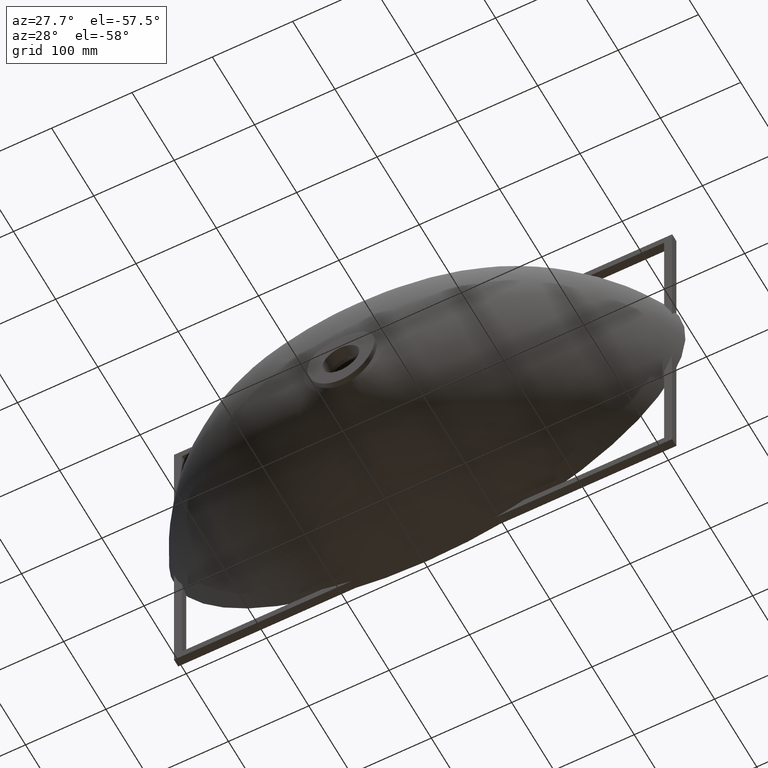
[diagram: clean part render]
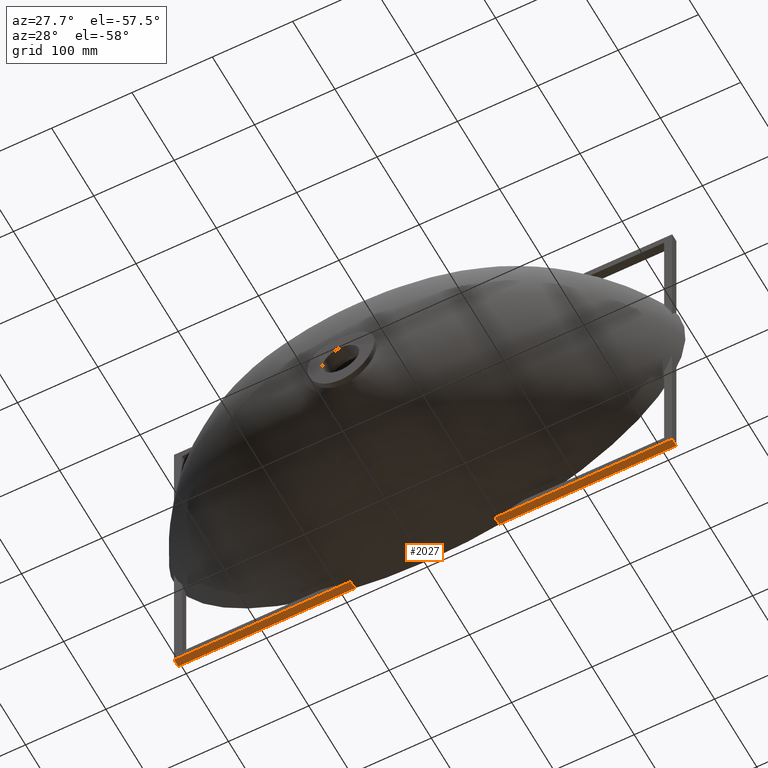
[diagram: same view with one face highlighted and labeled with its STEP entity id]
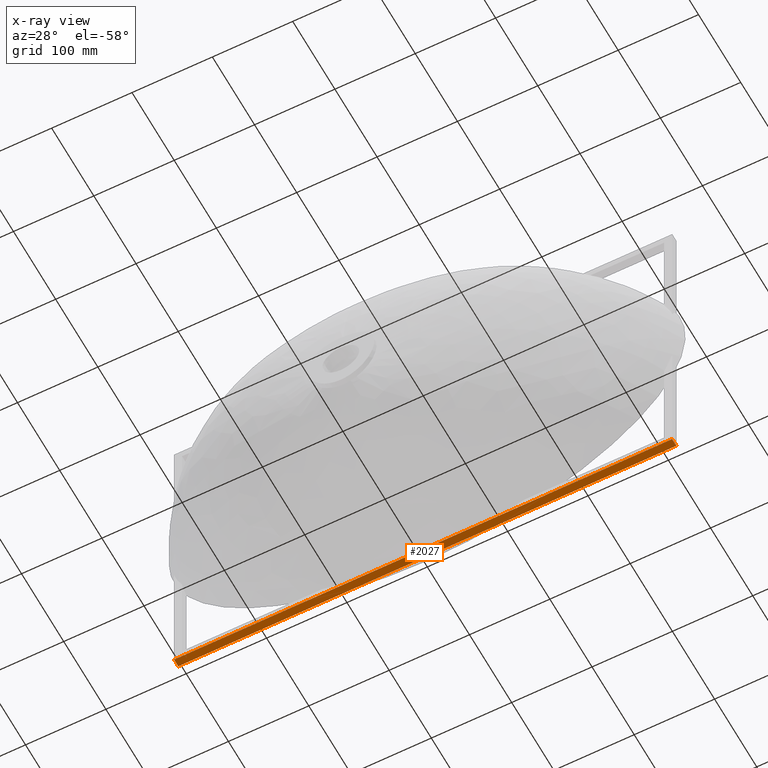
[diagram: x-ray of the same camera — body ghosted, the highlighted face saturated]
A machine part, auxiliary view. The second image highlights one B-rep face of the part: STEP entity #2027.
The next image is the same camera in x-ray: the body ghosted, the highlighted face saturated — about 0% of this face is hidden behind the body in this view.
In plain terms, the highlighted planar face has unit normal (-0, 0, -1).
Its self-contained STEP definition (entity closure, byte-faithful):
#147 = ORIENTED_EDGE ( 'NONE', *, *, #4228, .F. ) ;
#203 = CARTESIAN_POINT ( 'NONE',  ( -309.9999999999999400, 0.0000000000000000000, -209.9999999999999700 ) ) ;
#205 = CARTESIAN_POINT ( 'NONE',  ( 310.0000000000000600, -10.00000000000000000, -210.0000000000000000 ) ) ;
#275 = VECTOR ( 'NONE', #2187, 1000.000000000000000 ) ;
#372 = VERTEX_POINT ( 'NONE', #2166 ) ;
#538 = EDGE_CURVE ( 'NONE', #372, #1059, #3323, .T. ) ;
#636 = CARTESIAN_POINT ( 'NONE',  ( 310.0000000000000600, 0.0000000000000000000, -210.0000000000000000 ) ) ;
#783 = LINE ( 'NONE', #919, #1360 ) ;
#919 = CARTESIAN_POINT ( 'NONE',  ( -309.9999999999999400, -10.00000000000000000, -209.9999999999999700 ) ) ;
#920 = DIRECTION ( 'NONE',  ( -1.000000000000000000, 0.0000000000000000000, 4.476705744456277300E-017 ) ) ;
#996 = LINE ( 'NONE', #3366, #3087 ) ;
#1059 = VERTEX_POINT ( 'NONE', #203 ) ;
#1179 = ORIENTED_EDGE ( 'NONE', *, *, #2740, .F. ) ;
#1360 = VECTOR ( 'NONE', #3363, 1000.000000000000000 ) ;
#1461 = ORIENTED_EDGE ( 'NONE', *, *, #3640, .T. ) ;
#1498 = VERTEX_POINT ( 'NONE', #636 ) ;
#1729 = DIRECTION ( 'NONE',  ( 0.0000000000000000000, 1.000000000000000000, 0.0000000000000000000 ) ) ;
#1865 = DIRECTION ( 'NONE',  ( -4.476705744456277300E-017, 0.0000000000000000000, -1.000000000000000000 ) ) ;
#2027 = ADVANCED_FACE ( 'NONE', ( #3261 ), #3447, .T. ) ;
#2092 = VECTOR ( 'NONE', #1729, 1000.000000000000000 ) ;
#2166 = CARTESIAN_POINT ( 'NONE',  ( -309.9999999999999400, -10.00000000000000000, -209.9999999999999700 ) ) ;
#2187 = DIRECTION ( 'NONE',  ( 0.0000000000000000000, 1.000000000000000000, 0.0000000000000000000 ) ) ;
#2504 = CARTESIAN_POINT ( 'NONE',  ( 310.0000000000000600, -10.00000000000000000, -210.0000000000000000 ) ) ;
#2643 = CARTESIAN_POINT ( 'NONE',  ( -309.9999999999999400, -10.00000000000000000, -209.9999999999999700 ) ) ;
#2740 = EDGE_CURVE ( 'NONE', #1498, #1059, #996, .T. ) ;
#2995 = DIRECTION ( 'NONE',  ( -1.000000000000000000, -0.0000000000000000000, 4.476705744456276700E-017 ) ) ;
#3087 = VECTOR ( 'NONE', #2995, 1000.000000000000000 ) ;
#3261 = FACE_OUTER_BOUND ( 'NONE', #4330, .T. ) ;
#3323 = LINE ( 'NONE', #2643, #275 ) ;
#3363 = DIRECTION ( 'NONE',  ( -1.000000000000000000, -0.0000000000000000000, 4.476705744456276700E-017 ) ) ;
#3366 = CARTESIAN_POINT ( 'NONE',  ( -309.9999999999999400, 0.0000000000000000000, -209.9999999999999700 ) ) ;
#3447 = PLANE ( 'NONE',  #4034 ) ;
#3640 = EDGE_CURVE ( 'NONE', #4090, #372, #783, .T. ) ;
#3710 = CARTESIAN_POINT ( 'NONE',  ( -309.9999999999999400, -10.00000000000000000, -209.9999999999999700 ) ) ;
#3807 = ORIENTED_EDGE ( 'NONE', *, *, #538, .T. ) ;
#4034 = AXIS2_PLACEMENT_3D ( 'NONE', #3710, #1865, #920 ) ;
#4090 = VERTEX_POINT ( 'NONE', #205 ) ;
#4228 = EDGE_CURVE ( 'NONE', #4090, #1498, #4359, .T. ) ;
#4330 = EDGE_LOOP ( 'NONE', ( #1179, #147, #1461, #3807 ) ) ;
#4359 = LINE ( 'NONE', #2504, #2092 ) ;